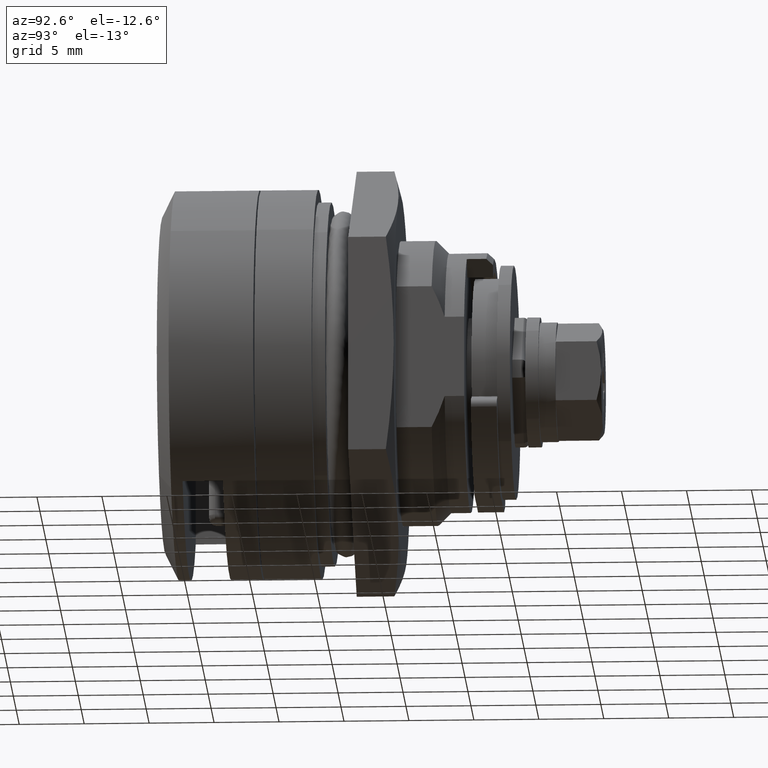
[diagram: clean part render]
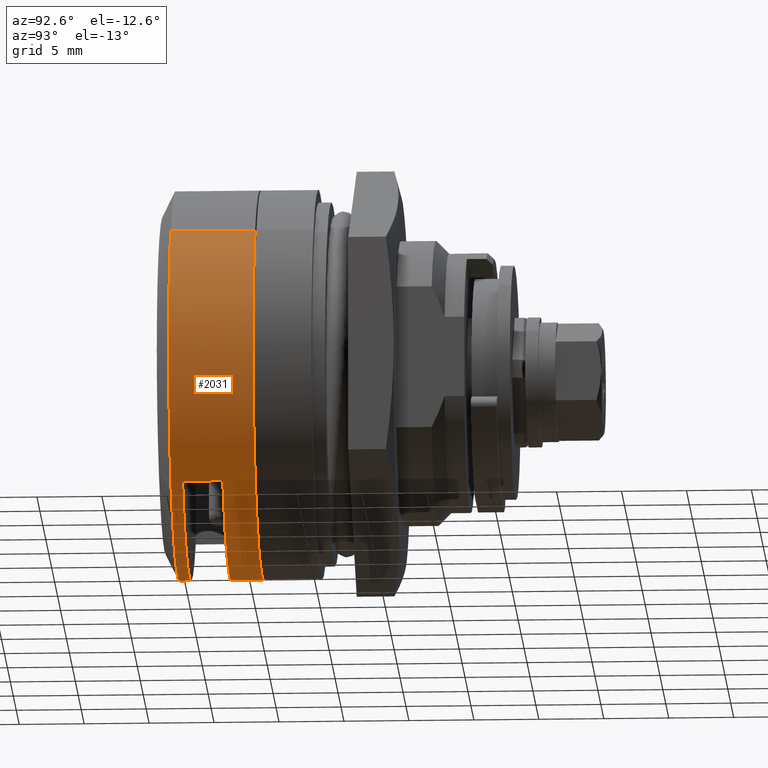
[diagram: same view with one face highlighted and labeled with its STEP entity id]
A machine part, auxiliary view. The second image highlights one B-rep face of the part: STEP entity #2031.
In plain terms, the highlighted face is a freeform B-spline surface patch.
Its self-contained STEP definition (entity closure, byte-faithful):
#938=CARTESIAN_POINT('',(-10.999999858290280,11.059160522309121,-10.133853545054400));
#939=VERTEX_POINT('',#938);
#945=CARTESIAN_POINT('',(-11.0,0.0,-15.0));
#946=VERTEX_POINT('',#945);
#947=CARTESIAN_POINT('',(-10.999999858290280,11.059160522309121,-10.133853545054400));
#948=CARTESIAN_POINT('',(-10.999999866979580,10.381039433086810,-10.874131631166771));
#949=CARTESIAN_POINT('',(-10.999999880361260,9.336718633637148,-11.805825684889790));
#950=CARTESIAN_POINT('',(-10.999999902800051,7.585578817319068,-12.976755491232970));
#951=CARTESIAN_POINT('',(-10.999999924948201,5.857110722433998,-13.875092981244810));
#952=CARTESIAN_POINT('',(-10.999999958505271,3.238297767069378,-14.754180935369030));
#953=CARTESIAN_POINT('',(-10.999999984645960,1.198236291150401,-15.000291304085010));
#954=CARTESIAN_POINT('',(-11.0,0.0,-15.0));
#955=B_SPLINE_CURVE_WITH_KNOTS('',3,(#947,#948,#949,#950,#951,#952,#953,#954),.UNSPECIFIED.,.F.,.U.,(4,1,1,1,1,4),(0.000000019609667,3.011720322359636,4.177556424986223,6.314877343248475,8.840857716298693,12.435492920126009),.UNSPECIFIED.);
#956=EDGE_CURVE('',#939,#946,#955,.T.);
#958=CARTESIAN_POINT('',(-11.000000142198470,-10.749764124788189,-10.461479439573720));
#959=VERTEX_POINT('',#958);
#960=CARTESIAN_POINT('',(-11.0,0.0,-15.0));
#961=CARTESIAN_POINT('',(-11.000000012798610,-0.967536026717644,-15.000134043212761));
#962=CARTESIAN_POINT('',(-11.000000034266360,-2.590429230427379,-14.842391312879670));
#963=CARTESIAN_POINT('',(-11.000000062661710,-4.737031493645608,-14.273510212469160));
#964=CARTESIAN_POINT('',(-11.000000090272991,-6.824362471395734,-13.430508081557210));
#965=CARTESIAN_POINT('',(-11.000000117269741,-8.865214914019111,-12.198632047137940));
#966=CARTESIAN_POINT('',(-11.000000135000100,-10.205607293105681,-11.020669815165400));
#967=CARTESIAN_POINT('',(-11.000000142198470,-10.749764124788189,-10.461479439573720));
#968=B_SPLINE_CURVE_WITH_KNOTS('',3,(#960,#961,#962,#963,#964,#965,#966,#967),.UNSPECIFIED.,.F.,.U.,(4,1,1,1,1,4),(0.000000017384380,2.902579610625702,4.868845832541960,6.647840152165738,9.644060537081156,11.984845991947450),.UNSPECIFIED.);
#969=EDGE_CURVE('',#946,#959,#968,.T.);
#1015=CARTESIAN_POINT('',(-11.0,-14.999999999999931,0.000001422510098));
#1016=VERTEX_POINT('',#1015);
#1017=CARTESIAN_POINT('',(-11.000000142198470,-10.749764124788189,-10.461479439573720));
#1018=CARTESIAN_POINT('',(-11.000000132214490,-11.464783958317160,-9.726962444310461));
#1019=CARTESIAN_POINT('',(-11.000000111858631,-12.649231257879370,-8.229388924258208));
#1020=CARTESIAN_POINT('',(-11.000000077548711,-13.961382222991370,-5.705222426500392));
#1021=CARTESIAN_POINT('',(-11.000000040569230,-14.798331567200259,-2.984667622099229));
#1022=CARTESIAN_POINT('',(-11.000000013933411,-15.000152784567170,-1.025068627617737));
#1023=CARTESIAN_POINT('',(-11.0,-14.999999999999931,0.000001422510098));
#1024=B_SPLINE_CURVE_WITH_KNOTS('',3,(#1017,#1018,#1019,#1020,#1021,#1022,#1023),.UNSPECIFIED.,.F.,.U.,(4,1,1,1,4),(0.000000015576903,3.075177202556199,5.698141417908051,8.501959174312031,11.577136824968390),.UNSPECIFIED.);
#1025=EDGE_CURVE('',#959,#1016,#1024,.T.);
#1027=CARTESIAN_POINT('',(-11.000000000000901,-11.485339263493330,9.648160058334472));
#1028=VERTEX_POINT('',#1027);
#1029=CARTESIAN_POINT('',(-11.0,-14.999999999999931,0.000001422510098));
#1030=CARTESIAN_POINT('',(-11.000000000000080,-15.000028516856039,0.709603732818874));
#1031=CARTESIAN_POINT('',(-11.000000000000179,-14.895238358557780,2.183383154606998));
#1032=CARTESIAN_POINT('',(-11.000000000000441,-14.432809046699379,4.267728825274006));
#1033=CARTESIAN_POINT('',(-11.000000000000520,-13.777121799901691,6.008181320772510));
#1034=CARTESIAN_POINT('',(-11.000000000000790,-12.862624540301921,7.811072892097385));
#1035=CARTESIAN_POINT('',(-11.000000000000799,-12.082294762323150,8.937712267832831));
#1036=CARTESIAN_POINT('',(-11.000000000000901,-11.485339263493330,9.648160058334472));
#1037=B_SPLINE_CURVE_WITH_KNOTS('',3,(#1029,#1030,#1031,#1032,#1033,#1034,#1035,#1036),.UNSPECIFIED.,.F.,.U.,(4,1,1,1,1,4),(3.433401E-009,2.128813245706258,4.421382358094586,6.386439374325764,7.696479025472664,10.480311880113341),.UNSPECIFIED.);
#1038=EDGE_CURVE('',#1016,#1028,#1037,.T.);
#1054=CARTESIAN_POINT('',(-10.999999999998650,10.289240211363170,10.914738898507450));
#1055=VERTEX_POINT('',#1054);
#1066=CARTESIAN_POINT('',(-11.0,14.999999999999931,-0.000001422510295));
#1067=VERTEX_POINT('',#1066);
#1068=CARTESIAN_POINT('',(-10.999999999998650,10.289240211363170,10.914738898507450));
#1069=CARTESIAN_POINT('',(-10.999999999998771,11.192819890633460,10.063390633962610));
#1070=CARTESIAN_POINT('',(-10.999999999998950,12.418600304171880,8.579629308446831));
#1071=CARTESIAN_POINT('',(-10.999999999999170,13.626272336829210,6.367466241776771));
#1072=CARTESIAN_POINT('',(-10.999999999999501,14.252878542577230,4.763471356522976));
#1073=CARTESIAN_POINT('',(-10.999999999999449,14.825388101011770,2.673775032058098));
#1074=CARTESIAN_POINT('',(-10.999999999999950,15.000245361231951,1.114132545735425));
#1075=CARTESIAN_POINT('',(-11.0,14.999999999999931,-0.000001422510295));
#1076=B_SPLINE_CURVE_WITH_KNOTS('',3,(#1068,#1069,#1070,#1071,#1072,#1073,#1074,#1075),.UNSPECIFIED.,.F.,.U.,(4,1,1,1,1,4),(0.000000018004869,3.724303130287144,5.729714807581045,7.544097495164670,8.881028518158200,12.223352861042519),.UNSPECIFIED.);
#1077=EDGE_CURVE('',#1055,#1067,#1076,.T.);
#1079=CARTESIAN_POINT('',(-11.0,14.999999999999931,-0.000001422510295));
#1080=CARTESIAN_POINT('',(-10.999999988654860,15.000065548023530,-0.811310787026175));
#1081=CARTESIAN_POINT('',(-10.999999969611480,14.889222672172670,-2.173122810946269));
#1082=CARTESIAN_POINT('',(-10.999999941081260,14.438754628828390,-4.213361641621698));
#1083=CARTESIAN_POINT('',(-10.999999915846949,13.790662466564360,-6.017892517971813));
#1084=CARTESIAN_POINT('',(-10.999999886691860,12.702600476883440,-8.102824937392207));
#1085=CARTESIAN_POINT('',(-10.999999868446000,11.724834267113000,-9.407605592951400));
#1086=CARTESIAN_POINT('',(-10.999999858290280,11.059160522309121,-10.133853545054400));
#1087=B_SPLINE_CURVE_WITH_KNOTS('',3,(#1079,#1080,#1081,#1082,#1083,#1084,#1085,#1086),.UNSPECIFIED.,.F.,.U.,(4,1,1,1,1,4),(0.000000014461319,2.433918110157595,4.085509231139096,6.258637743337544,8.171014519846322,11.126488364201141),.UNSPECIFIED.);
#1088=EDGE_CURVE('',#1067,#939,#1087,.T.);
#1842=CARTESIAN_POINT('',(-4.500000000000001,-11.485339263692691,9.648160058097147));
#1843=VERTEX_POINT('',#1842);
#1844=CARTESIAN_POINT('',(-4.500000000000001,-11.485339263692691,9.648160058097147));
#1845=CARTESIAN_POINT('',(-11.000000000000901,-11.485339263493330,9.648160058334472));
#1846=QUASI_UNIFORM_CURVE('',1,(#1844,#1845),.UNSPECIFIED.,.F.,.U.);
#1847=EDGE_CURVE('',#1843,#1028,#1846,.T.);
#1863=CARTESIAN_POINT('',(-4.500000000000000,10.289240211057370,10.914738898795729));
#1864=VERTEX_POINT('',#1863);
#1876=CARTESIAN_POINT('',(-4.500000000000000,10.289240211057370,10.914738898795729));
#1877=CARTESIAN_POINT('',(-10.999999999998650,10.289240211363170,10.914738898507450));
#1878=QUASI_UNIFORM_CURVE('',1,(#1876,#1877),.UNSPECIFIED.,.F.,.U.);
#1879=EDGE_CURVE('',#1864,#1055,#1878,.T.);
#1885=CARTESIAN_POINT('',(-4.337500000000000,10.289240429055081,10.914739181175980));
#1886=CARTESIAN_POINT('',(-4.337500000000000,21.203979610231073,0.625498752120897));
#1887=CARTESIAN_POINT('',(-4.337500000000000,10.914739181175980,-10.289240429055081));
#1888=CARTESIAN_POINT('',(-4.337500000000000,0.625498752120897,-21.203979610231073));
#1889=CARTESIAN_POINT('',(-4.337500000000000,-10.289240429055081,-10.914739181175980));
#1890=CARTESIAN_POINT('',(-4.337500000000000,-20.596611920418411,-1.198059588031669));
#1891=CARTESIAN_POINT('',(-4.337500000000000,-11.485339010472478,9.648159814934600));
#1892=CARTESIAN_POINT('',(-11.166562500000000,10.289240429055081,10.914739181175980));
#1893=CARTESIAN_POINT('',(-11.166562500000001,21.203979610231073,0.625498752120897));
#1894=CARTESIAN_POINT('',(-11.166562500000000,10.914739181175980,-10.289240429055081));
#1895=CARTESIAN_POINT('',(-11.166562500000001,0.625498752120897,-21.203979610231073));
#1896=CARTESIAN_POINT('',(-11.166562500000000,-10.289240429055081,-10.914739181175980));
#1897=CARTESIAN_POINT('',(-11.166562500000003,-20.596611920418411,-1.198059588031669));
#1898=CARTESIAN_POINT('',(-11.166562500000005,-11.485339010472478,9.648159814934600));
#1906=(BOUNDED_SURFACE()B_SPLINE_SURFACE(2,1,((#1885,#1892),(#1886,#1893),(#1887,#1894),(#1888,#1895),(#1889,#1896),(#1890,#1897),(#1891,#1898)),.UNSPECIFIED.,.F.,.F.,.U.)B_SPLINE_SURFACE_WITH_KNOTS((3,2,2,3),(2,2),(0.0,24.852813742385688,49.705627484771377,73.564328677461646),(0.0,6.829062500000003),.UNSPECIFIED.)GEOMETRIC_REPRESENTATION_ITEM()RATIONAL_B_SPLINE_SURFACE(((1.0,1.0),(0.707106781186548,0.707106781186548),(1.0,1.0),(0.707106781186548,0.707106781186548),(1.0,1.0),(0.718822509939086,0.718822509939086),(0.977505800795127,0.977505800795127)))REPRESENTATION_ITEM('')SURFACE());
#1907=ORIENTED_EDGE('',*,*,#1038,.F.);
#1908=ORIENTED_EDGE('',*,*,#1025,.F.);
#1909=ORIENTED_EDGE('',*,*,#969,.F.);
#1910=ORIENTED_EDGE('',*,*,#956,.F.);
#1911=ORIENTED_EDGE('',*,*,#1088,.F.);
#1912=ORIENTED_EDGE('',*,*,#1077,.F.);
#1913=ORIENTED_EDGE('',*,*,#1879,.F.);
#1914=CARTESIAN_POINT('',(-4.500000000000000,14.999999999999931,-0.000001422510295));
#1915=VERTEX_POINT('',#1914);
#1916=CARTESIAN_POINT('',(-4.500000000000000,10.289240211057370,10.914738898795729));
#1917=CARTESIAN_POINT('',(-4.499999999999997,10.891510186193580,10.347081088816379));
#1918=CARTESIAN_POINT('',(-4.500000000000007,11.830842957424981,9.301732076505470));
#1919=CARTESIAN_POINT('',(-4.499999999999985,13.147658086959529,7.343958782424483));
#1920=CARTESIAN_POINT('',(-4.499999999999996,14.018012582563699,5.491759748337911));
#1921=CARTESIAN_POINT('',(-4.500000000000069,14.790874938292820,2.928369127149582));
#1922=CARTESIAN_POINT('',(-4.499999999999883,15.000319642381079,1.209644191780944));
#1923=CARTESIAN_POINT('',(-4.500000000000000,14.999999999999931,-0.000001422510295));
#1924=B_SPLINE_CURVE_WITH_KNOTS('',3,(#1916,#1917,#1918,#1919,#1920,#1921,#1922,#1923),.UNSPECIFIED.,.F.,.U.,(4,1,1,1,1,4),(0.000000018002805,2.482866164803964,4.201778150015273,7.066623560720688,8.594540911664268,12.223352861462811),.UNSPECIFIED.);
#1925=EDGE_CURVE('',#1864,#1915,#1924,.T.);
#1926=ORIENTED_EDGE('',*,*,#1925,.T.);
#1927=CARTESIAN_POINT('',(-4.500000000000000,0.0,-15.0));
#1928=VERTEX_POINT('',#1927);
#1929=CARTESIAN_POINT('',(-4.500000000000000,14.999999999999931,-0.000001422510295));
#1930=CARTESIAN_POINT('',(-4.499999999999986,15.000090223484049,-0.889711626043704));
#1931=CARTESIAN_POINT('',(-4.500000000000017,14.876775974306661,-2.270249527475670));
#1932=CARTESIAN_POINT('',(-4.499999999999997,14.399745548662400,-4.335324836417519));
#1933=CARTESIAN_POINT('',(-4.499999999999997,13.767268461400370,-6.069357620604951));
#1934=CARTESIAN_POINT('',(-4.499999999999984,12.879224945267410,-7.755528759491182));
#1935=CARTESIAN_POINT('',(-4.499999999999982,11.784118309201091,-9.351739982598925));
#1936=CARTESIAN_POINT('',(-4.500000000000061,10.322012729468719,-10.975008784308219));
#1937=CARTESIAN_POINT('',(-4.499999999999987,8.663151571653172,-12.302626654263159));
#1938=CARTESIAN_POINT('',(-4.499999999999892,6.818869287545883,-13.408029721736860));
#1939=CARTESIAN_POINT('',(-4.500000000000250,5.041461706089168,-14.182908552536110));
#1940=CARTESIAN_POINT('',(-4.499999999999611,2.669062305393282,-14.831576678212929));
#1941=CARTESIAN_POINT('',(-4.500000000000428,1.012438915061859,-15.000159096803230));
#1942=CARTESIAN_POINT('',(-4.500000000000000,0.0,-15.0));
#1943=B_SPLINE_CURVE_WITH_KNOTS('',3,(#1929,#1930,#1931,#1932,#1933,#1934,#1935,#1936,#1937,#1938,#1939,#1940,#1941,#1942),.UNSPECIFIED.,.F.,.U.,(4,1,1,1,1,1,1,1,1,1,1,4),(0.000000062627489,2.669108664335695,4.141743175538270,6.350693645249322,8.191479170864472,9.848174142569471,12.149113704570491,14.726226291334690,16.198858691282879,18.591879602525349,20.524706105658531,23.561981062026891),.UNSPECIFIED.);
#1944=EDGE_CURVE('',#1915,#1928,#1943,.T.);
#1945=ORIENTED_EDGE('',*,*,#1944,.T.);
#1946=CARTESIAN_POINT('',(-4.500000000000001,-14.999999999999931,0.000001422510098));
#1947=VERTEX_POINT('',#1946);
#1948=CARTESIAN_POINT('',(-4.500000000000000,0.0,-15.0));
#1949=CARTESIAN_POINT('',(-4.499999999999996,-1.043114408264945,-15.000162921205339));
#1950=CARTESIAN_POINT('',(-4.499999999999994,-2.853142478104092,-14.810385619452150));
#1951=CARTESIAN_POINT('',(-4.500000000000020,-5.569567219609523,-14.013658227404489));
#1952=CARTESIAN_POINT('',(-4.499999999999941,-7.969666330259173,-12.814842240354331));
#1953=CARTESIAN_POINT('',(-4.500000000000070,-9.877099807224004,-11.354131996252679));
#1954=CARTESIAN_POINT('',(-4.499999999999955,-11.496091068827869,-9.715184759065831));
#1955=CARTESIAN_POINT('',(-4.500000000000027,-12.817535714937200,-7.933453307229707));
#1956=CARTESIAN_POINT('',(-4.499999999999988,-14.007617133696501,-5.569197075517361));
#1957=CARTESIAN_POINT('',(-4.500000000000036,-14.803559072447600,-2.945192124511242));
#1958=CARTESIAN_POINT('',(-4.499999999999911,-15.000152221474201,-1.012433986262208));
#1959=CARTESIAN_POINT('',(-4.500000000000001,-14.999999999999931,0.000001422510098));
#1960=B_SPLINE_CURVE_WITH_KNOTS('',3,(#1948,#1949,#1950,#1951,#1952,#1953,#1954,#1955,#1956,#1957,#1958,#1959),.UNSPECIFIED.,.F.,.U.,(4,1,1,1,1,1,1,1,1,4),(0.000000062562716,3.129314197937660,5.430299691725558,8.467607654400208,11.136724104337899,12.609322545024311,15.370507265915959,17.763527250418718,20.524707502830509,23.561982665529762),.UNSPECIFIED.);
#1961=EDGE_CURVE('',#1928,#1947,#1960,.T.);
#1962=ORIENTED_EDGE('',*,*,#1961,.T.);
#1963=CARTESIAN_POINT('',(-4.500000000000001,-14.999999999999931,0.000001422510098));
#1964=CARTESIAN_POINT('',(-4.500000000000007,-15.000028499732940,0.709603253104696));
#1965=CARTESIAN_POINT('',(-4.499999999999987,-14.895235998870950,2.183384034536007));
#1966=CARTESIAN_POINT('',(-4.500000000000008,-14.409093981818060,4.374611571034040));
#1967=CARTESIAN_POINT('',(-4.499999999999996,-13.396454111993499,6.976486121232005));
#1968=CARTESIAN_POINT('',(-4.499999999999995,-12.293158830957820,8.687074426440896));
#1969=CARTESIAN_POINT('',(-4.500000000000001,-11.485339263692691,9.648160058097147));
#1970=B_SPLINE_CURVE_WITH_KNOTS('',3,(#1963,#1964,#1965,#1966,#1967,#1968,#1969),.UNSPECIFIED.,.F.,.U.,(4,1,1,1,4),(3.433515E-009,2.128813245643430,4.421382357963937,6.713949312090309,10.480311879803370),.UNSPECIFIED.);
#1971=EDGE_CURVE('',#1947,#1843,#1970,.T.);
#1972=ORIENTED_EDGE('',*,*,#1971,.T.);
#1973=ORIENTED_EDGE('',*,*,#1847,.T.);
#1974=EDGE_LOOP('',(#1907,#1908,#1909,#1910,#1911,#1912,#1913,#1926,#1945,#1962,#1972,#1973));
#1975=FACE_OUTER_BOUND('',#1974,.T.);
#1976=CARTESIAN_POINT('',(-7.000000000000201,11.180339887498940,-10.0));
#1977=VERTEX_POINT('',#1976);
#1978=CARTESIAN_POINT('',(-7.000000000000201,-11.180339887498940,-10.0));
#1979=VERTEX_POINT('',#1978);
#1980=CARTESIAN_POINT('',(-7.000000000000201,11.180339887498940,-10.0));
#1981=CARTESIAN_POINT('',(-7.000000000000180,10.348269576637760,-10.930814390221020));
#1982=CARTESIAN_POINT('',(-7.000000000000240,8.899371156712594,-12.191189619254160));
#1983=CARTESIAN_POINT('',(-7.000000000000167,6.734818862172652,-13.446744570792760));
#1984=CARTESIAN_POINT('',(-7.000000000000254,4.856026524476567,-14.242943417973519));
#1985=CARTESIAN_POINT('',(-7.000000000000107,2.978375109755708,-14.748143859702679));
#1986=CARTESIAN_POINT('',(-7.000000000000241,0.759128090055814,-15.034084418520880));
#1987=CARTESIAN_POINT('',(-7.000000000000260,-1.252569706411131,-15.001040438608889));
#1988=CARTESIAN_POINT('',(-7.000000000000145,-3.363773892779076,-14.658144623560601));
#1989=CARTESIAN_POINT('',(-7.000000000000282,-5.354363400638222,-14.073202215459320));
#1990=CARTESIAN_POINT('',(-7.000000000000123,-7.176300248077899,-13.222216698492799));
#1991=CARTESIAN_POINT('',(-7.000000000000204,-9.227763056903836,-11.911962558108129));
#1992=CARTESIAN_POINT('',(-6.999999999999985,-10.435807611745449,-10.832777549865471));
#1993=CARTESIAN_POINT('',(-7.000000000000201,-11.180339887498940,-10.0));
#1994=B_SPLINE_CURVE_WITH_KNOTS('',3,(#1980,#1981,#1982,#1983,#1984,#1985,#1986,#1987,#1988,#1989,#1990,#1991,#1992,#1993),.UNSPECIFIED.,.F.,.U.,(4,1,1,1,1,1,1,1,1,1,1,4),(0.000000075676045,3.745386421753167,5.716649379554717,7.490784832946030,9.856317019395663,11.531871919251479,14.193051475895791,15.868608976731940,17.938449714446872,20.402523607755541,21.880972566347960,25.232105508858350),.UNSPECIFIED.);
#1995=EDGE_CURVE('',#1977,#1979,#1994,.T.);
#1996=ORIENTED_EDGE('',*,*,#1995,.F.);
#1997=CARTESIAN_POINT('',(-10.100000000000000,11.180339887498940,-10.0));
#1998=VERTEX_POINT('',#1997);
#1999=CARTESIAN_POINT('',(-10.100000000000000,11.180339887498940,-10.0));
#2000=CARTESIAN_POINT('',(-7.000000000000201,11.180339887498940,-10.0));
#2001=QUASI_UNIFORM_CURVE('',1,(#1999,#2000),.UNSPECIFIED.,.F.,.U.);
#2002=EDGE_CURVE('',#1998,#1977,#2001,.T.);
#2003=ORIENTED_EDGE('',*,*,#2002,.F.);
#2004=CARTESIAN_POINT('',(-10.100000000000000,-11.180339887498940,-10.0));
#2005=VERTEX_POINT('',#2004);
#2006=CARTESIAN_POINT('',(-10.100000000000000,11.180339887498940,-10.0));
#2007=CARTESIAN_POINT('',(-10.099999999999991,10.676606900218870,-10.563253797765560));
#2008=CARTESIAN_POINT('',(-10.100000000000060,9.560007730375668,-11.636213671430690));
#2009=CARTESIAN_POINT('',(-10.099999999999859,7.697567085119593,-12.940969692435941));
#2010=CARTESIAN_POINT('',(-10.100000000000300,5.749440399449717,-13.906030810865790));
#2011=CARTESIAN_POINT('',(-10.099999999999500,3.844191420475626,-14.541575974501241));
#2012=CARTESIAN_POINT('',(-10.100000000000470,2.067576276757482,-14.890309346666120));
#2013=CARTESIAN_POINT('',(-10.099999999999669,0.099728654239049,-15.045840522122109));
#2014=CARTESIAN_POINT('',(-10.100000000000060,-1.842164099617909,-14.937260480370229));
#2015=CARTESIAN_POINT('',(-10.100000000000120,-3.843159225053729,-14.537585953269490));
#2016=CARTESIAN_POINT('',(-10.099999999999911,-5.656294609428124,-13.939392913331600));
#2017=CARTESIAN_POINT('',(-10.100000000000019,-7.287172508560330,-13.151361496457159));
#2018=CARTESIAN_POINT('',(-10.099999999999980,-9.227770567114888,-11.911978596796230));
#2019=CARTESIAN_POINT('',(-10.099999999999961,-10.435807493936130,-10.832774833417830));
#2020=CARTESIAN_POINT('',(-10.100000000000000,-11.180339887498940,-10.0));
#2021=B_SPLINE_CURVE_WITH_KNOTS('',3,(#2006,#2007,#2008,#2009,#2010,#2011,#2012,#2013,#2014,#2015,#2016,#2017,#2018,#2019,#2020),.UNSPECIFIED.,.F.,.U.,(4,1,1,1,1,1,1,1,1,1,1,1,4),(0.000000075676045,2.266938004942798,4.632446975080320,6.800844723435969,8.772110488409357,10.644825802578490,12.221841881077680,14.685872285866820,16.460002990567009,18.332697438733451,20.402523607755541,21.880972566347960,25.232105508858350),.UNSPECIFIED.);
#2022=EDGE_CURVE('',#1998,#2005,#2021,.T.);
#2023=ORIENTED_EDGE('',*,*,#2022,.T.);
#2024=CARTESIAN_POINT('',(-7.000000000000201,-11.180339887498940,-10.0));
#2025=CARTESIAN_POINT('',(-10.100000000000000,-11.180339887498940,-10.0));
#2026=QUASI_UNIFORM_CURVE('',1,(#2024,#2025),.UNSPECIFIED.,.F.,.U.);
#2027=EDGE_CURVE('',#1979,#2005,#2026,.T.);
#2028=ORIENTED_EDGE('',*,*,#2027,.F.);
#2029=EDGE_LOOP('',(#1996,#2003,#2023,#2028));
#2030=FACE_BOUND('',#2029,.T.);
#2031=ADVANCED_FACE('',(#1975,#2030),#1906,.T.);